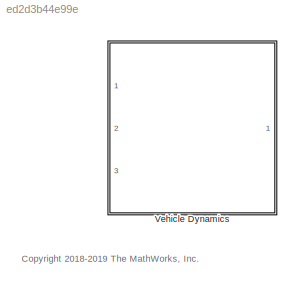
MODEL slx_ed2d3b44e99e
KIND library
CONFIG AbsTol = auto
CONFIG EnableMultiTasking = off
CONFIG FixedStep = auto
CONFIG MaxStep = auto
CONFIG MinStep = auto
CONFIG RelTol = 1e-3
CONFIG SampleTimeConstraint = Unconstrained
CONFIG Solver = VariableStepAuto
CONFIG SolverName = VariableStepAuto
CONFIG StartTime = 0.0
CONFIG StopTime = 10.0
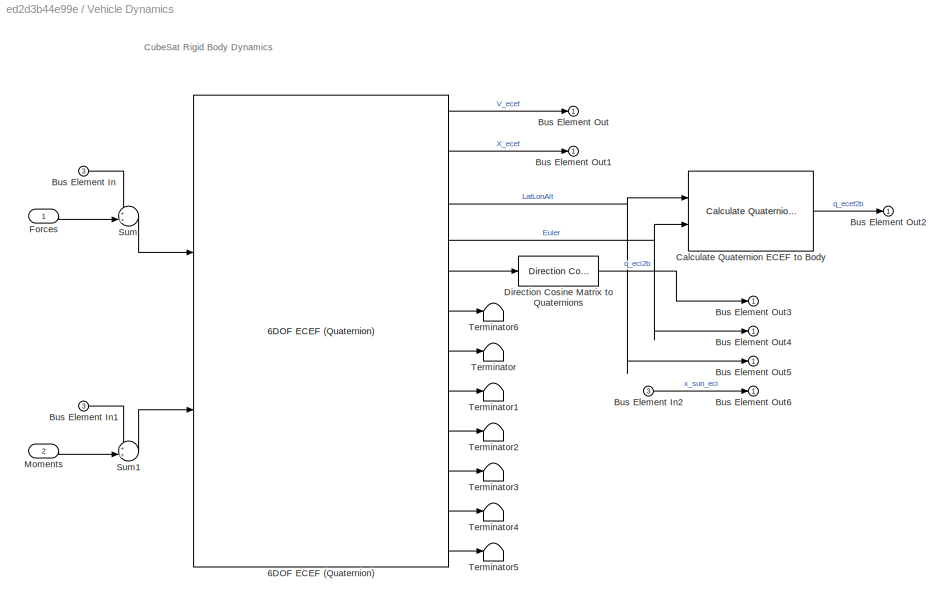
BLOCK [SubSystem] Vehicle Dynamics
  Ports = [3, 1]
  RequestExecContextInheritance = off
BLOCK [Reference] Vehicle Dynamics/6DOF ECEF (Quaternion)  REF=aerolib6dof2/6DOF ECEF (Quaternion)
  Ports = [2, 12]
  SourceBlock = aerolib6dof2/6DOF ECEF (Quaternion)
  SourceProductBaseCode = AE
  SourceProductName = Aerospace Blockset
  SourceType = 6DOF EoM (ECEF)
BLOCK [Inport] Vehicle Dynamics/Bus Element In
  IconDisplay = Port number
  Port = 3
BLOCK [Inport] Vehicle Dynamics/Bus Element In1
  IconDisplay = Port number
  Port = 3
BLOCK [Inport] Vehicle Dynamics/Bus Element In2
  IconDisplay = Port number
  Port = 3
BLOCK [Outport] Vehicle Dynamics/Bus Element Out
  IconDisplay = Port number
  VectorParamsAs1DForOutWhenUnconnected = off
BLOCK [Outport] Vehicle Dynamics/Bus Element Out1
  IconDisplay = Port number
  VectorParamsAs1DForOutWhenUnconnected = off
BLOCK [Outport] Vehicle Dynamics/Bus Element Out2
  IconDisplay = Port number
  VectorParamsAs1DForOutWhenUnconnected = off
BLOCK [Outport] Vehicle Dynamics/Bus Element Out3
  IconDisplay = Port number
  VectorParamsAs1DForOutWhenUnconnected = off
BLOCK [Outport] Vehicle Dynamics/Bus Element Out4
  IconDisplay = Port number
  VectorParamsAs1DForOutWhenUnconnected = off
BLOCK [Outport] Vehicle Dynamics/Bus Element Out5
  IconDisplay = Port number
  VectorParamsAs1DForOutWhenUnconnected = off
BLOCK [Outport] Vehicle Dynamics/Bus Element Out6
  IconDisplay = Port number
  VectorParamsAs1DForOutWhenUnconnected = off
BLOCK [Reference] Vehicle Dynamics/Calculate Quaternion ECEF to Body  REF=asbCubeSatBlockLib/Axes
Transformations/Coordinate System Transformations/Calculate Quaternion
ECEF to Body
  Ports = [2, 1]
  SourceBlock = asbCubeSatBlockLib/Axes\nTransformations/Coordinate System Transformations/Calculate Quaternion\nECEF to Body
  SourceProductBaseCode = AERO_CUBESAT
  SourceProductName = Aerospace Blockset CubeSat Simulation Library
  SourceType = SubSystem
BLOCK [Reference] Vehicle Dynamics/Direction Cosine Matrix to Quaternions  REF=sharedtransform/Direction Cosine Matrix 
to Quaternions
  Ports = [1, 1]
  SourceBlock = sharedtransform/Direction Cosine Matrix \nto Quaternions
  SourceProductBaseCode = AE
  SourceProductName = Aerospace Blockset
  SourceType = DCM2Quaternion
BLOCK [Inport] Vehicle Dynamics/Forces
  IconDisplay = Port number
BLOCK [Inport] Vehicle Dynamics/Moments
  IconDisplay = Port number
  Port = 2
BLOCK [Sum] Vehicle Dynamics/Sum
  IconShape = round
  InputSameDT = off
  Inputs = ++|
  OutDataTypeStr = Inherit: Inherit via internal rule
  Ports = [2, 1]
  SaturateOnIntegerOverflow = off
BLOCK [Sum] Vehicle Dynamics/Sum1
  IconShape = round
  InputSameDT = off
  Inputs = ++|
  OutDataTypeStr = Inherit: Inherit via internal rule
  Ports = [2, 1]
  SaturateOnIntegerOverflow = off
BLOCK [Terminator] Vehicle Dynamics/Terminator
BLOCK [Terminator] Vehicle Dynamics/Terminator1
BLOCK [Terminator] Vehicle Dynamics/Terminator2
BLOCK [Terminator] Vehicle Dynamics/Terminator3
BLOCK [Terminator] Vehicle Dynamics/Terminator4
BLOCK [Terminator] Vehicle Dynamics/Terminator5
BLOCK [Terminator] Vehicle Dynamics/Terminator6
ANNOTATION (root): <copyright redacted>
ANNOTATION Vehicle Dynamics: CubeSat Rigid Body Dynamics
LINE Vehicle Dynamics/6DOF ECEF (Quaternion):1 -> Vehicle Dynamics/Bus Element Out:1
LINE Vehicle Dynamics/6DOF ECEF (Quaternion):10 -> Vehicle Dynamics/Terminator3:1
LINE Vehicle Dynamics/6DOF ECEF (Quaternion):11 -> Vehicle Dynamics/Terminator4:1
LINE Vehicle Dynamics/6DOF ECEF (Quaternion):12 -> Vehicle Dynamics/Terminator5:1
LINE Vehicle Dynamics/6DOF ECEF (Quaternion):2 -> Vehicle Dynamics/Bus Element Out1:1
NET Vehicle Dynamics/6DOF ECEF (Quaternion):3 -> Vehicle Dynamics/Bus Element Out5:1, Vehicle Dynamics/Calculate Quaternion ECEF to Body:1
NET Vehicle Dynamics/6DOF ECEF (Quaternion):4 -> Vehicle Dynamics/Bus Element Out4:1, Vehicle Dynamics/Calculate Quaternion ECEF to Body:2
LINE Vehicle Dynamics/6DOF ECEF (Quaternion):5 -> Vehicle Dynamics/Direction Cosine Matrix to Quaternions:1
LINE Vehicle Dynamics/6DOF ECEF (Quaternion):6 -> Vehicle Dynamics/Terminator6:1
LINE Vehicle Dynamics/6DOF ECEF (Quaternion):7 -> Vehicle Dynamics/Terminator:1
LINE Vehicle Dynamics/6DOF ECEF (Quaternion):8 -> Vehicle Dynamics/Terminator1:1
LINE Vehicle Dynamics/6DOF ECEF (Quaternion):9 -> Vehicle Dynamics/Terminator2:1
LINE Vehicle Dynamics/Bus Element In1:1 -> Vehicle Dynamics/Sum1:1
LINE Vehicle Dynamics/Bus Element In2:1 -> Vehicle Dynamics/Bus Element Out6:1
LINE Vehicle Dynamics/Bus Element In:1 -> Vehicle Dynamics/Sum:1
LINE Vehicle Dynamics/Calculate Quaternion ECEF to Body:1 -> Vehicle Dynamics/Bus Element Out2:1
LINE Vehicle Dynamics/Direction Cosine Matrix to Quaternions:1 -> Vehicle Dynamics/Bus Element Out3:1
LINE Vehicle Dynamics/Forces:1 -> Vehicle Dynamics/Sum:2
LINE Vehicle Dynamics/Moments:1 -> Vehicle Dynamics/Sum1:2
LINE Vehicle Dynamics/Sum1:1 -> Vehicle Dynamics/6DOF ECEF (Quaternion):2
LINE Vehicle Dynamics/Sum:1 -> Vehicle Dynamics/6DOF ECEF (Quaternion):1
note: NET lines group one-source signal fan-out (src -> all destinations, sorted); 1:1 wires keep LINE
